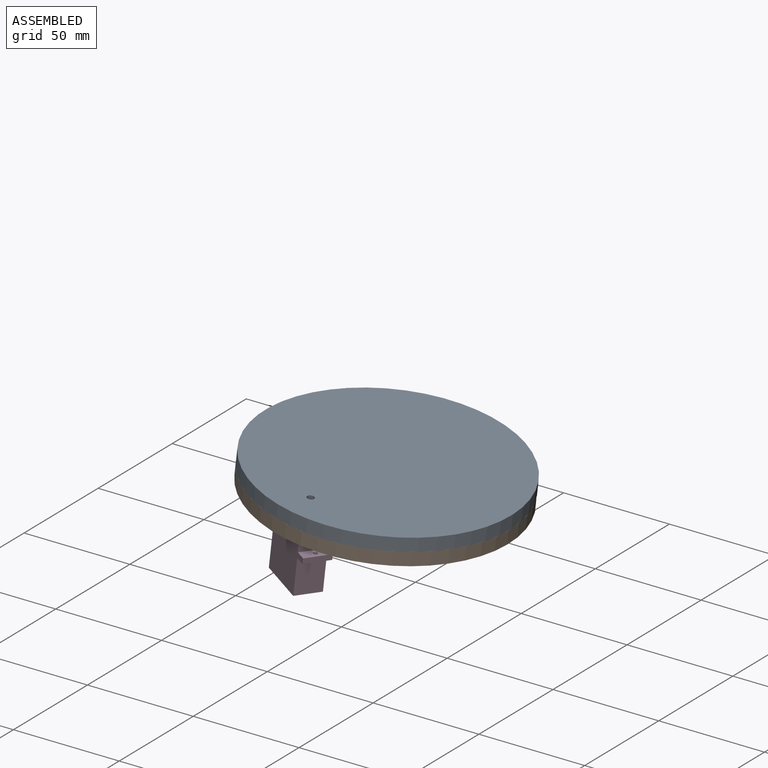
[diagram: assembled view]
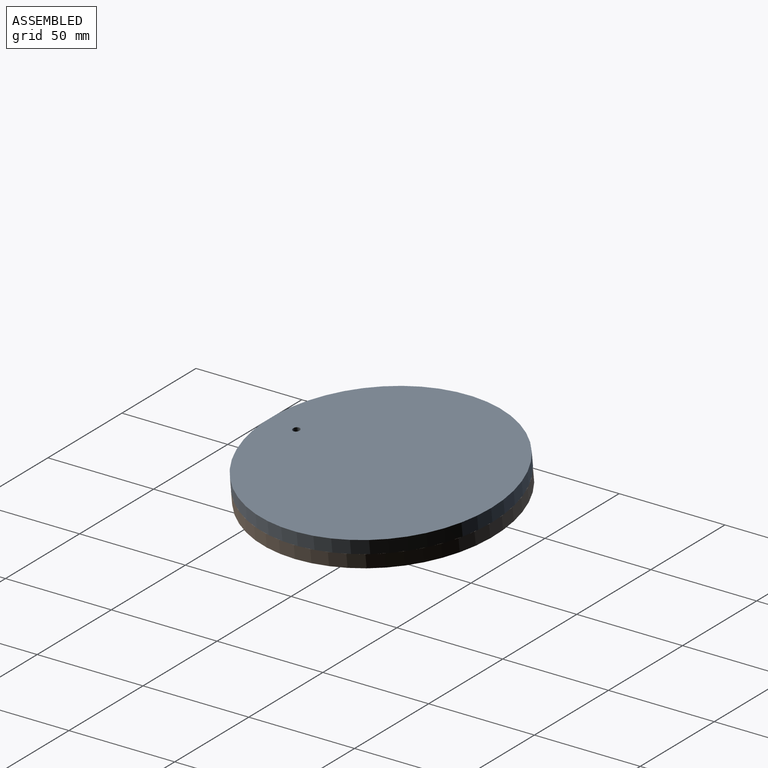
[diagram: assembled view, second angle]
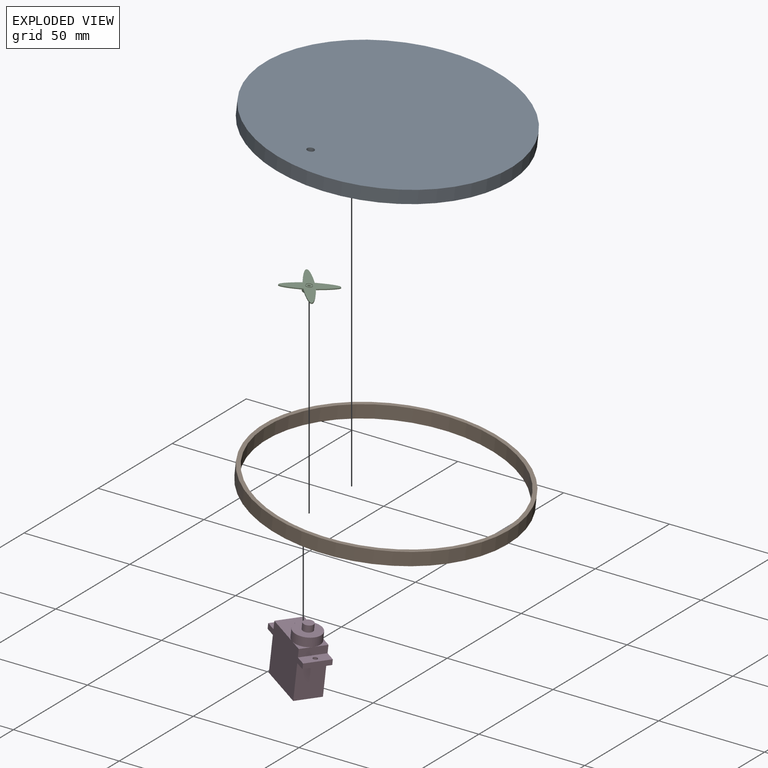
[diagram: exploded view]
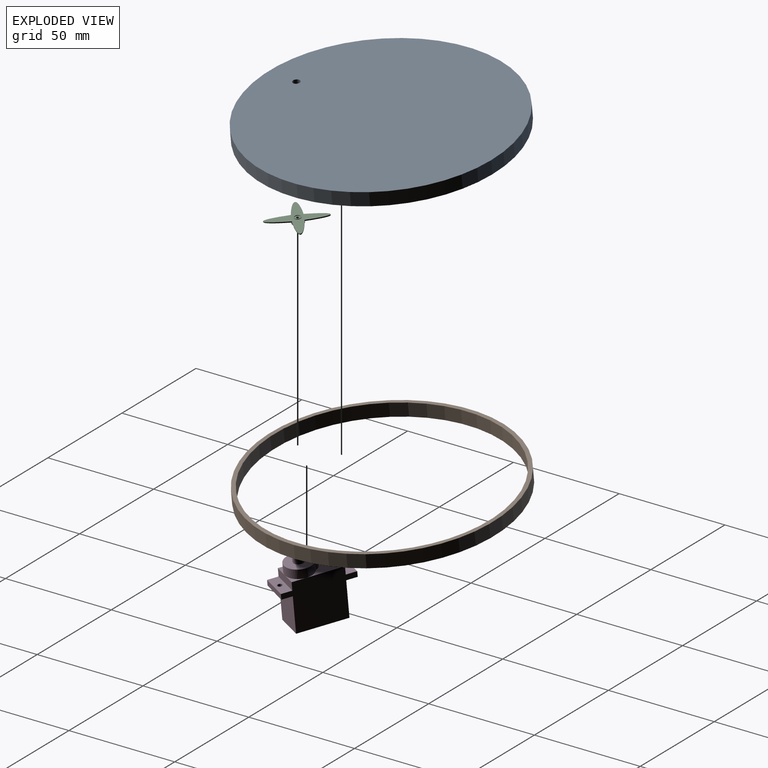
[diagram: exploded view, second angle]
ASSEMBLY  parts=4 mates=4
PART A: 4 faces, bbox 117.3x117.3x6.4 mm
  f0: cylinder r=58.67mm len=117.35mm, axis (0,0,-1), area 2341mm2, adj f1,f2
  f1: plane 117.35x117.35mm, normal (0,0,1), area 10806.8mm2, adj f0,f3
  f2: plane 117.35x117.35mm, normal (0,0,-1), area 10806.8mm2, adj f0,f3
  f3: cylinder r=1.65mm len=6.35mm, axis (0,0,1), area 65.9mm2, adj f1,f2
PART B: 4 faces, bbox 117.3x117.3x6.4 mm
  f0: cylinder r=58.67mm len=117.35mm, axis (0,0,-1), area 2341mm2, adj f1,f2
  f1: plane 117.35x117.35mm, normal (0,0,1), area 690.9mm2, adj f0,f3
  f2: plane 117.35x117.35mm, normal (0,0,-1), area 690.9mm2, adj f0,f3
  f3: cylinder r=56.77mm len=113.54mm, axis (0,0,-1), area 2265mm2, adj f1,f2
PART C: 15 faces, bbox 30.5x32.7x2.5 mm
  f0: extruded ~10.99x4.99mm, area 11.7mm2, adj f5,f6,f9,f10
  f1: cylinder r=2.67mm len=5.33mm, axis (0,0,-1), area 29.8mm2, adj f3,f6
  f2: extruded ~10.34x4.69mm, area 11mm2, adj f5,f6,f9,f10
  f3: plane 5.33x5.33mm, normal (0,0,1), area 4.1mm2, adj f1,f4
  f4: cylinder r=2.41mm len=4.83mm, axis (0,0,1), area 27mm2, adj f3,f7
  f5: plane 32.65x30.5mm, normal (0,0,-1), area 158.7mm2, adj f0,f2,f9,f10,f12
  f6: plane 32.65x30.5mm, normal (0,0,1), area 143.7mm2, adj f0,f1,f2,f9,f10
  f7: plane 4.83x4.83mm, normal (0,0,1), area 17mm2, adj f4,f8
  f8: cylinder r=0.63mm len=1.26mm, axis (0,0,-1), area 2mm2, adj f7,f14
  f9: extruded ~9.73x4.99mm, area 10.4mm2, adj f0,f2,f5,f6
  f10: extruded ~10.12x4.95mm, area 10.8mm2, adj f0,f2,f5,f6
  f11: plane 3.05x3.05mm, normal (0,0,-1), area 1.2mm2, adj f12,f13
  f12: cylinder r=1.52mm len=3.05mm, axis (0,0,1), area 2.4mm2, adj f5,f11
  f13: cylinder r=1.4mm len=2.79mm, axis (0,0,-1), area 2.2mm2, adj f11,f14
  f14: plane 2.79x2.79mm, normal (0,0,-1), area 4.9mm2, adj f8,f13
PART D: 25 faces, bbox 12.8x32.7x30.6 mm
  f0: plane 5.75x5.54mm, normal (0,0,1), area 8.3mm2, adj f6,f9,f18
  f1: plane 16.51x12.7mm, normal (0,0,1), area 139.1mm2, adj f4,f8,f9,f17,f18
  f2: plane 16.87x12.7mm, normal (0,-1,0), area 214.2mm2, adj f7,f8,f9,f15
  f3: plane 16.87x12.7mm, normal (0,1,0), area 214.2mm2, adj f7,f8,f9,f11
  f4: plane 12.7x3.76mm, normal (0,1,0), area 47.7mm2, adj f1,f8,f9,f10
  f5: plane 6.35x5.8mm, normal (0,0,1), area 8.6mm2, adj f6,f8,f18
  f6: plane 12.7x3.76mm, normal (0,-1,0), area 47.7mm2, adj f0,f5,f8,f9,f13,f20
  f7: plane 22.86x12.7mm, normal (0,0,-1), area 290.3mm2, adj f2,f3,f8,f9
  f8: plane 32.72x23.17mm, normal (1,0,0), area 554.6mm2, adj f1,f2,f3,f4,f5,f6,f7,f10
  f9: plane 32.72x23.17mm, normal (-1,0,0), area 554.6mm2, adj f0,f1,f2,f3,f4,f6,f7,f10
  f10: plane 12.7x4.93mm, normal (0,0,1), area 59mm2, adj f4,f8,f9,f12,f23
  f11: plane 12.7x4.93mm, normal (0,0,-1), area 59mm2, adj f3,f8,f9,f12,f23
  f12: plane 12.7x2.54mm, normal (0,1,0), area 32.3mm2, adj f8,f9,f10,f11
  f13: plane 12.7x4.93mm, normal (0,0,1), area 59mm2, adj f6,f8,f9,f14,f24
  f14: plane 12.7x2.54mm, normal (0,-1,0), area 32.3mm2, adj f8,f9,f13,f15
  f15: plane 12.7x4.93mm, normal (0,0,-1), area 59mm2, adj f2,f8,f9,f14,f24
  f16: plane 1.63x0.05mm, normal (0,0,-1), area 0.1mm2, adj f9,f18
  f17: cylinder r=2.86mm len=5.56mm, axis (0,0,-1), area 32.5mm2, adj f1,f18,f19
  f18: cylinder r=6.38mm len=12.75mm, axis (0,0,-1), area 145.5mm2, adj f0,f1,f5,f16,f17,f19,f20
  f19: plane 14.31x12.75mm, normal (0,0,1), area 116.1mm2, adj f17,f18,f21
  f20: plane 1.15x0.03mm, normal (0,0,-1), area 0mm2, adj f6,f18
  f21: cylinder r=2.41mm len=4.83mm, axis (0,0,-1), area 47.8mm2, adj f19,f22
  f22: plane 4.83x4.83mm, normal (0,0,1), area 18.3mm2, adj f21
  f23: cylinder r=1.07mm len=2.54mm, axis (0,0,1), area 17mm2, adj f10,f11
  f24: cylinder r=1.07mm len=2.54mm, axis (0,0,1), area 17mm2, adj f13,f15
PLACE A rot(axis=(-0.05,0.13,-0.99),50.9deg) t=(-8.83,121.75,85.21)mm
PLACE B rot(axis=(-0.06,0.03,-1),140.5deg) t=(-9.58,121.8,78.9)mm
PLACE C rot(axis=(0.34,-0.94,-0.02),173.7deg) t=(-14.77,77.82,84.8)mm
PLACE D rot(axis=(0.07,0.1,0.99),60.1deg) t=(-24.76,75.08,65.07)mm
MATE revolute D.f18 <-> C.f4  axis (0.12,-0.01,0.99) through (-14.98,77.83,83.03)mm
MATE cylindrical A.f0 <-> B.f0  axis (-0.12,0.01,-0.99) through (-8.83,121.75,85.21)mm
MATE fastened C.f12 <-> A.f3  axis (0.12,-0.01,0.99) through (-14.68,77.81,85.55)mm
MATE fastened A.f0 <-> B.f0  axis (-0.12,0.01,-0.99) through (-8.83,121.75,85.21)mm
